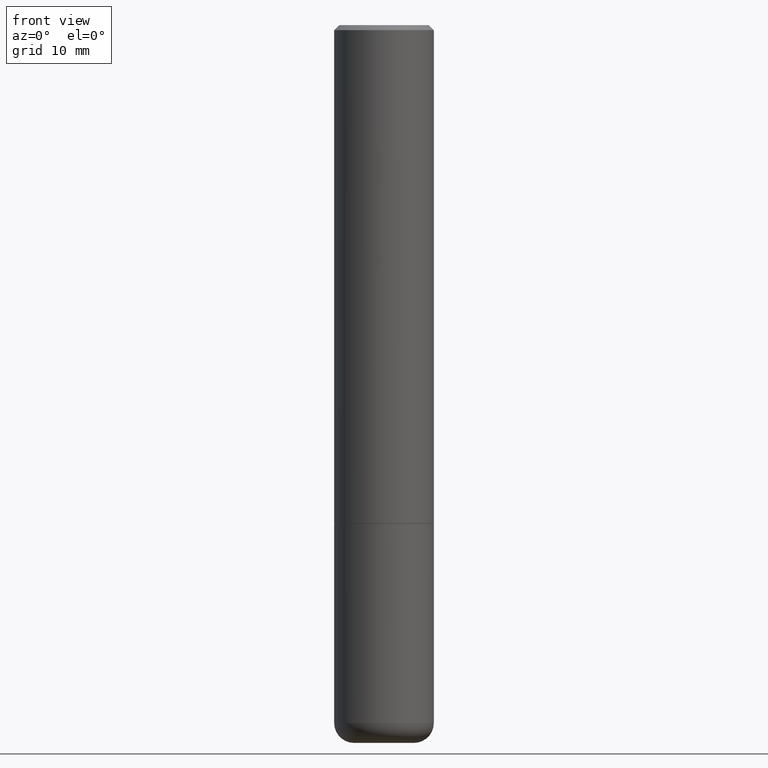
[diagram: clean part render]
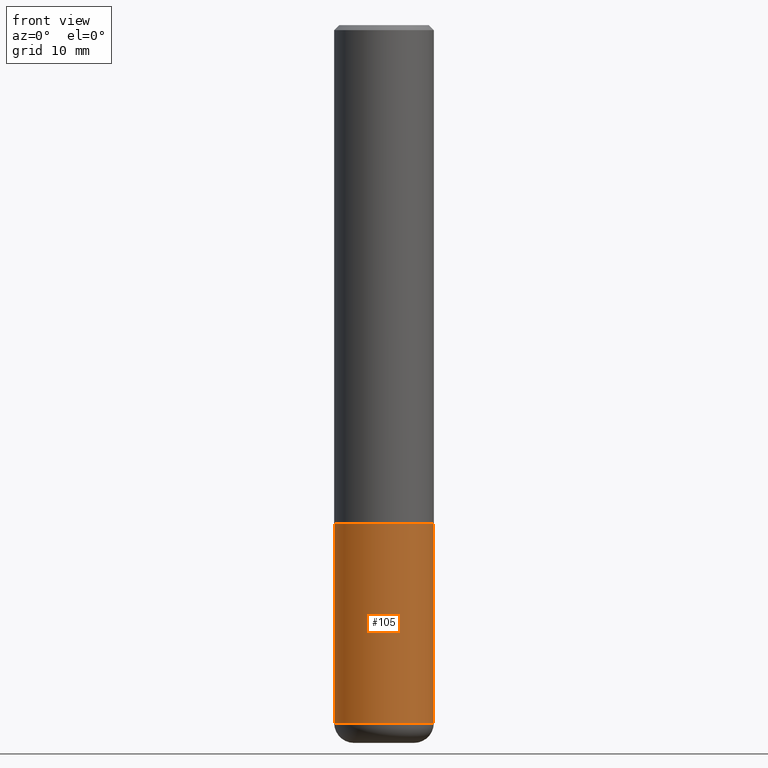
[diagram: same view with one face highlighted and labeled with its STEP entity id]
A machine part, front view. The second image highlights one B-rep face of the part: STEP entity #105.
In plain terms, the highlighted cylindrical surface (partial cylindrical patch) has radius 5 mm, axis along (-0, 0, 1).
Its self-contained STEP definition (entity closure, byte-faithful):
#33 = CIRCLE ( 'NONE', #91, 0.1968500000000000250 ) ;
#43 = LINE ( 'NONE', #383, #76 ) ;
#61 = ORIENTED_EDGE ( 'NONE', *, *, #79, .T. ) ;
#71 = CYLINDRICAL_SURFACE ( 'NONE', #306, 0.1968500000000000250 ) ;
#76 = VECTOR ( 'NONE', #302, 39.37007874015748143 ) ;
#78 = CARTESIAN_POINT ( 'NONE',  ( 0.000000000000000000, 0.000000000000000000, 0.000000000000000000 ) ) ;
#79 = EDGE_CURVE ( 'NONE', #215, #217, #43, .T. ) ;
#82 = CARTESIAN_POINT ( 'NONE',  ( -0.1968500000000000250, -6.848873843271521050E-15, -1.968500000000000139 ) ) ;
#91 = AXIS2_PLACEMENT_3D ( 'NONE', #275, #168, #143 ) ;
#101 = VERTEX_POINT ( 'NONE', #262 ) ;
#105 = ADVANCED_FACE ( 'NONE', ( #109 ), #71, .T. ) ;
#109 = FACE_OUTER_BOUND ( 'NONE', #346, .T. ) ;
#140 = CARTESIAN_POINT ( 'NONE',  ( 4.813905344975441835E-29, -6.872981015512731707E-15, -1.968500000000000139 ) ) ;
#142 = CARTESIAN_POINT ( 'NONE',  ( -0.1968500000000000250, 1.398703375343757393E-15, -9.682923725166783677E-30 ) ) ;
#143 = DIRECTION ( 'NONE',  ( 1.000000000000000000, -6.982962677686267499E-15, 0.000000000000000000 ) ) ;
#145 = LINE ( 'NONE', #142, #184 ) ;
#152 = CIRCLE ( 'NONE', #386, 0.1968500000000000250 ) ;
#168 = DIRECTION ( 'NONE',  ( -2.445468806185136597E-29, 3.491481338843145583E-15, 1.000000000000000000 ) ) ;
#184 = VECTOR ( 'NONE', #393, 39.37007874015748143 ) ;
#198 = DIRECTION ( 'NONE',  ( 1.000000000000000000, -6.982962677686265922E-15, 4.876176775795935793E-29 ) ) ;
#200 = DIRECTION ( 'NONE',  ( -2.445468806185136597E-29, 3.491481338843145583E-15, 1.000000000000000000 ) ) ;
#215 = VERTEX_POINT ( 'NONE', #310 ) ;
#217 = VERTEX_POINT ( 'NONE', #334 ) ;
#224 = EDGE_CURVE ( 'NONE', #242, #217, #152, .T. ) ;
#232 = DIRECTION ( 'NONE',  ( 1.000000000000000000, -6.982962677686267499E-15, 0.000000000000000000 ) ) ;
#242 = VERTEX_POINT ( 'NONE', #82 ) ;
#262 = CARTESIAN_POINT ( 'NONE',  ( -0.1968499999999999694, -8.223470046374067391E-15, -2.755900000000000016 ) ) ;
#275 = CARTESIAN_POINT ( 'NONE',  ( 6.739467482965618232E-29, -9.622173421717824390E-15, -2.755900000000000016 ) ) ;
#302 = DIRECTION ( 'NONE',  ( -2.445468806185136877E-29, 3.491481338843145188E-15, 1.000000000000000000 ) ) ;
#306 = AXIS2_PLACEMENT_3D ( 'NONE', #78, #200, #198 ) ;
#308 = DIRECTION ( 'NONE',  ( -2.445468806185136597E-29, 3.491481338843145583E-15, 1.000000000000000000 ) ) ;
#310 = CARTESIAN_POINT ( 'NONE',  ( 0.1968499999999999694, -1.099676962482036600E-14, -2.755900000000000016 ) ) ;
#321 = EDGE_CURVE ( 'NONE', #101, #215, #33, .T. ) ;
#326 = EDGE_CURVE ( 'NONE', #101, #242, #145, .T. ) ;
#333 = ORIENTED_EDGE ( 'NONE', *, *, #224, .F. ) ;
#334 = CARTESIAN_POINT ( 'NONE',  ( 0.1968500000000000250, -8.247577218615273316E-15, -1.968500000000000139 ) ) ;
#343 = ORIENTED_EDGE ( 'NONE', *, *, #326, .F. ) ;
#346 = EDGE_LOOP ( 'NONE', ( #343, #413, #61, #333 ) ) ;
#383 = CARTESIAN_POINT ( 'NONE',  ( 0.1968500000000000250, -1.374596203102541608E-15, 9.598753983154300858E-30 ) ) ;
#386 = AXIS2_PLACEMENT_3D ( 'NONE', #140, #308, #232 ) ;
#393 = DIRECTION ( 'NONE',  ( -2.445468806185136877E-29, 3.491481338843145188E-15, 1.000000000000000000 ) ) ;
#413 = ORIENTED_EDGE ( 'NONE', *, *, #321, .T. ) ;